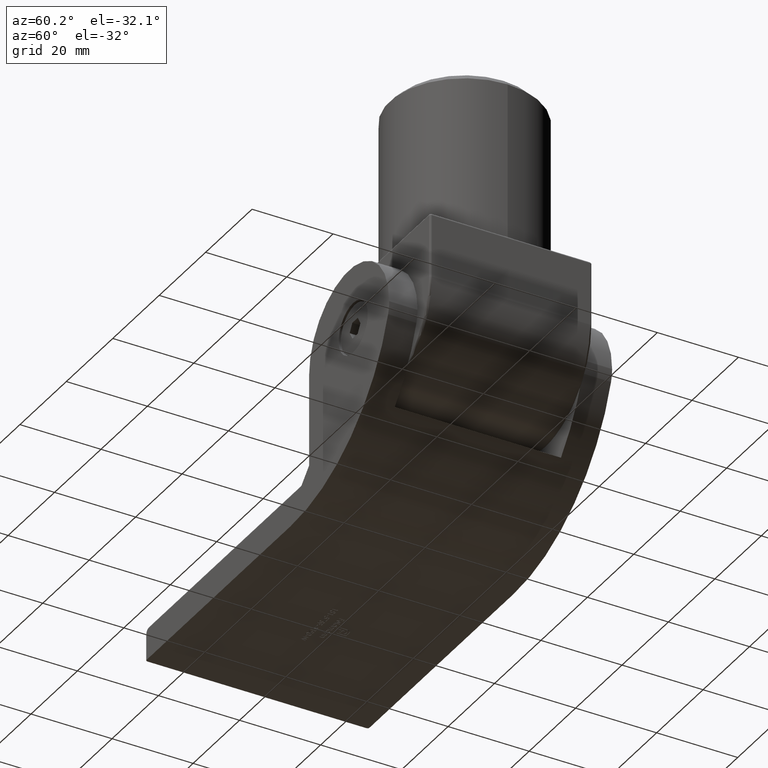
[diagram: clean part render]
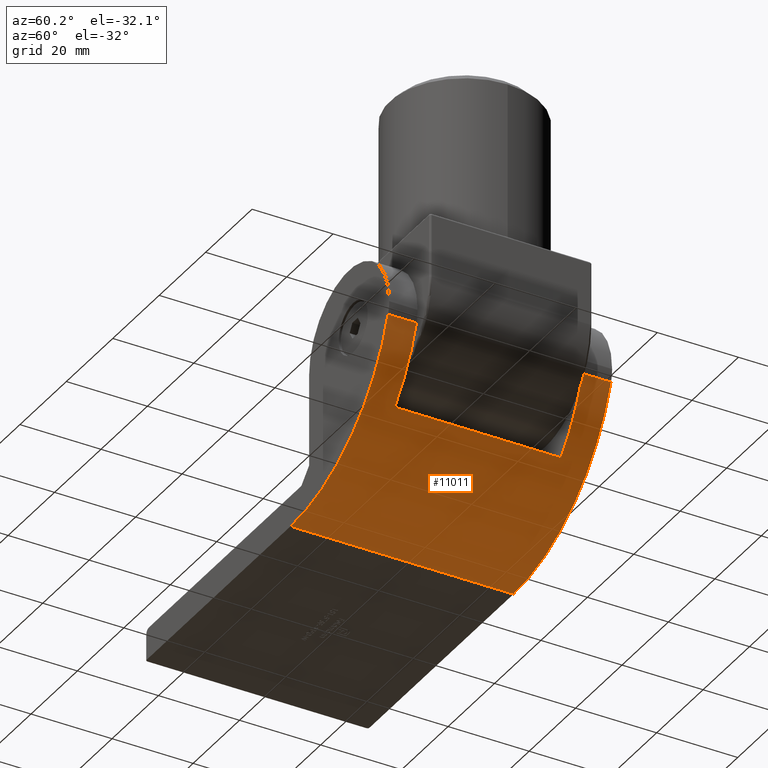
[diagram: same view with one face highlighted and labeled with its STEP entity id]
A machine part, auxiliary view. The second image highlights one B-rep face of the part: STEP entity #11011.
In plain terms, the highlighted cylindrical surface (partial cylindrical patch) has radius 44.1118 mm, axis along (-0, -1, -0).
Its self-contained STEP definition (entity closure, byte-faithful):
#3 = CARTESIAN_POINT ( 'NONE',  ( 9.999999999999987566, 27.50000000000000000, -25.50000000000000000 ) ) ;
#120 = ORIENTED_EDGE ( 'NONE', *, *, #14418, .F. ) ;
#204 = AXIS2_PLACEMENT_3D ( 'NONE', #5427, #17541, #237 ) ;
#209 = VERTEX_POINT ( 'NONE', #3 ) ;
#237 = DIRECTION ( 'NONE',  ( 0.000000000000000000, 0.000000000000000000, -1.000000000000000000 ) ) ;
#1127 = ORIENTED_EDGE ( 'NONE', *, *, #8059, .T. ) ;
#1318 = CARTESIAN_POINT ( 'NONE',  ( 9.999999999999987566, -27.50000000000000000, -25.50000000000000000 ) ) ;
#1569 = CARTESIAN_POINT ( 'NONE',  ( 52.02748312439729972, 27.50000000000000000, 5.212391513982630897 ) ) ;
#1573 = CARTESIAN_POINT ( 'NONE',  ( 9.999999999999987566, 27.50000000000000000, -25.50000000000000000 ) ) ;
#1581 = CIRCLE ( 'NONE', #20927, 44.11184210526318594 ) ;
#1901 = DIRECTION ( 'NONE',  ( 0.000000000000000000, 0.000000000000000000, 1.000000000000000000 ) ) ;
#1996 = LINE ( 'NONE', #1573, #19803 ) ;
#2366 = AXIS2_PLACEMENT_3D ( 'NONE', #5523, #17424, #7119 ) ;
#2699 = CARTESIAN_POINT ( 'NONE',  ( 9.999999999999980460, 27.50000000000000000, 18.61184210526317884 ) ) ;
#3340 = DIRECTION ( 'NONE',  ( -0.000000000000000000, 1.000000000000000000, 0.000000000000000000 ) ) ;
#3795 = CIRCLE ( 'NONE', #204, 44.11184210526318594 ) ;
#4154 = CYLINDRICAL_SURFACE ( 'NONE', #17672, 44.11184210526318594 ) ;
#4204 = DIRECTION ( 'NONE',  ( -0.000000000000000000, -1.000000000000000000, -0.000000000000000000 ) ) ;
#4978 = VERTEX_POINT ( 'NONE', #11495 ) ;
#5382 = ORIENTED_EDGE ( 'NONE', *, *, #10472, .T. ) ;
#5417 = CIRCLE ( 'NONE', #11219, 44.11184210526318594 ) ;
#5427 = CARTESIAN_POINT ( 'NONE',  ( 9.999999999999980460, -27.50000000000000000, 18.61184210526317884 ) ) ;
#5523 = CARTESIAN_POINT ( 'NONE',  ( 9.999999999999980460, -20.50000000000000000, 18.61184210526317884 ) ) ;
#5794 = ORIENTED_EDGE ( 'NONE', *, *, #16677, .T. ) ;
#7034 = CIRCLE ( 'NONE', #2366, 44.11184210526318594 ) ;
#7119 = DIRECTION ( 'NONE',  ( 0.000000000000000000, 0.000000000000000000, -1.000000000000000000 ) ) ;
#7493 = VERTEX_POINT ( 'NONE', #9222 ) ;
#7511 = CARTESIAN_POINT ( 'NONE',  ( 42.69546483921939739, -20.50000000000000000, -10.99999999999999645 ) ) ;
#8059 = EDGE_CURVE ( 'NONE', #4978, #8976, #3795, .T. ) ;
#8293 = VERTEX_POINT ( 'NONE', #1569 ) ;
#8976 = VERTEX_POINT ( 'NONE', #1318 ) ;
#9222 = CARTESIAN_POINT ( 'NONE',  ( 42.69546483921939739, 20.50000000000000000, -10.99999999999999645 ) ) ;
#9264 = FACE_OUTER_BOUND ( 'NONE', #13421, .T. ) ;
#9565 = DIRECTION ( 'NONE',  ( 0.000000000000000000, 0.000000000000000000, -1.000000000000000000 ) ) ;
#10011 = DIRECTION ( 'NONE',  ( 0.000000000000000000, 1.000000000000000000, -0.000000000000000000 ) ) ;
#10302 = EDGE_CURVE ( 'NONE', #8293, #16998, #11812, .T. ) ;
#10472 = EDGE_CURVE ( 'NONE', #15147, #19306, #7034, .T. ) ;
#11011 = ADVANCED_FACE ( 'NONE', ( #9264 ), #4154, .T. ) ;
#11046 = CARTESIAN_POINT ( 'NONE',  ( 52.02748312439729972, 27.50000000000000000, 5.212391513982630897 ) ) ;
#11219 = AXIS2_PLACEMENT_3D ( 'NONE', #13408, #10011, #20420 ) ;
#11495 = CARTESIAN_POINT ( 'NONE',  ( 52.02748312439729972, -27.50000000000000000, 5.212391513982630897 ) ) ;
#11635 = CARTESIAN_POINT ( 'NONE',  ( 52.02748312439729972, -20.50000000000000000, 5.212391513982630897 ) ) ;
#11812 = LINE ( 'NONE', #21668, #16085 ) ;
#13375 = CARTESIAN_POINT ( 'NONE',  ( 9.999999999999980460, 20.50000000000000000, 18.61184210526317884 ) ) ;
#13408 = CARTESIAN_POINT ( 'NONE',  ( 9.999999999999980460, 27.50000000000000000, 18.61184210526317884 ) ) ;
#13421 = EDGE_LOOP ( 'NONE', ( #20488, #5794, #20102, #5382, #17418, #1127, #21873, #120 ) ) ;
#13484 = DIRECTION ( 'NONE',  ( -0.000000000000000000, -1.000000000000000000, -0.000000000000000000 ) ) ;
#14418 = EDGE_CURVE ( 'NONE', #8293, #209, #5417, .T. ) ;
#14819 = VECTOR ( 'NONE', #4204, 1000.000000000000000 ) ;
#15147 = VERTEX_POINT ( 'NONE', #7511 ) ;
#16085 = VECTOR ( 'NONE', #21962, 1000.000000000000000 ) ;
#16398 = EDGE_CURVE ( 'NONE', #19306, #4978, #19405, .T. ) ;
#16677 = EDGE_CURVE ( 'NONE', #16998, #7493, #1581, .T. ) ;
#16998 = VERTEX_POINT ( 'NONE', #17927 ) ;
#17418 = ORIENTED_EDGE ( 'NONE', *, *, #16398, .T. ) ;
#17424 = DIRECTION ( 'NONE',  ( 0.000000000000000000, -1.000000000000000000, 0.000000000000000000 ) ) ;
#17541 = DIRECTION ( 'NONE',  ( 0.000000000000000000, 1.000000000000000000, -0.000000000000000000 ) ) ;
#17622 = CARTESIAN_POINT ( 'NONE',  ( 42.69546483921939029, 27.50000000000000000, -11.00000000000000000 ) ) ;
#17672 = AXIS2_PLACEMENT_3D ( 'NONE', #2699, #19754, #9565 ) ;
#17707 = DIRECTION ( 'NONE',  ( -0.000000000000000000, -1.000000000000000000, -0.000000000000000000 ) ) ;
#17927 = CARTESIAN_POINT ( 'NONE',  ( 52.02748312439729972, 20.50000000000000000, 5.212391513982630897 ) ) ;
#19306 = VERTEX_POINT ( 'NONE', #11635 ) ;
#19405 = LINE ( 'NONE', #11046, #14819 ) ;
#19409 = VECTOR ( 'NONE', #17707, 1000.000000000000000 ) ;
#19691 = LINE ( 'NONE', #17622, #19409 ) ;
#19754 = DIRECTION ( 'NONE',  ( -0.000000000000000000, -1.000000000000000000, -0.000000000000000000 ) ) ;
#19803 = VECTOR ( 'NONE', #13484, 1000.000000000000000 ) ;
#20004 = EDGE_CURVE ( 'NONE', #209, #8976, #1996, .T. ) ;
#20102 = ORIENTED_EDGE ( 'NONE', *, *, #21228, .T. ) ;
#20420 = DIRECTION ( 'NONE',  ( 0.000000000000000000, 0.000000000000000000, -1.000000000000000000 ) ) ;
#20488 = ORIENTED_EDGE ( 'NONE', *, *, #10302, .T. ) ;
#20927 = AXIS2_PLACEMENT_3D ( 'NONE', #13375, #3340, #1901 ) ;
#21228 = EDGE_CURVE ( 'NONE', #7493, #15147, #19691, .T. ) ;
#21668 = CARTESIAN_POINT ( 'NONE',  ( 52.02748312439729972, 27.50000000000000000, 5.212391513982630897 ) ) ;
#21873 = ORIENTED_EDGE ( 'NONE', *, *, #20004, .F. ) ;
#21962 = DIRECTION ( 'NONE',  ( -0.000000000000000000, -1.000000000000000000, -0.000000000000000000 ) ) ;